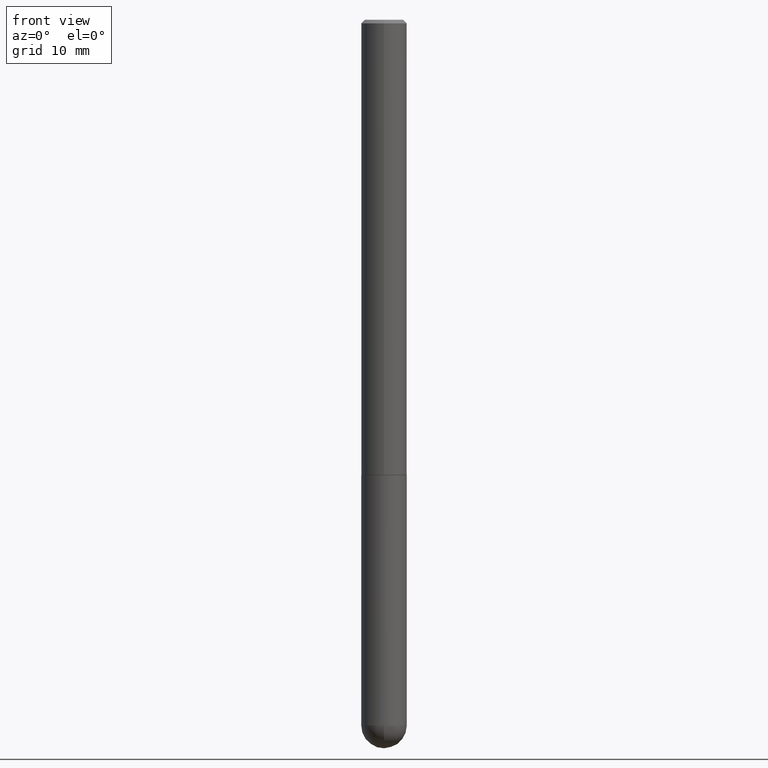
[diagram: clean part render]
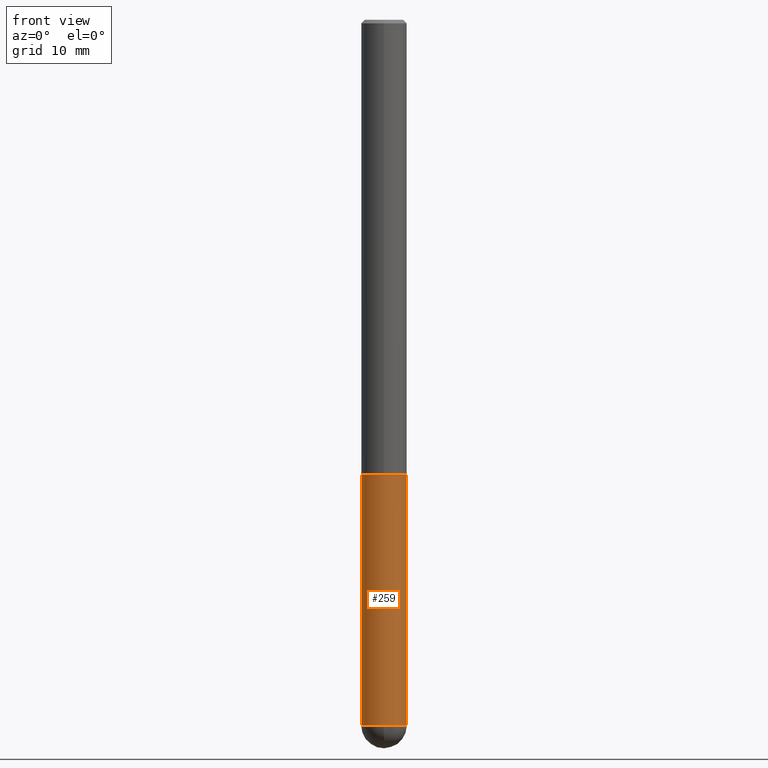
[diagram: same view with one face highlighted and labeled with its STEP entity id]
A machine part, front view. The second image highlights one B-rep face of the part: STEP entity #259.
In plain terms, the highlighted cylindrical surface (edge-blend (fillet) strip) has radius 3.175 mm, axis along (-0, 0, 1).
Its self-contained STEP definition (entity closure, byte-faithful):
#1 = EDGE_CURVE ( 'NONE', #400, #278, #349, .T. ) ;
#8 = CARTESIAN_POINT ( 'NONE',  ( 0.1250000000000000000, -8.728703347107833388E-16, 6.095220969744919741E-30 ) ) ;
#10 = CIRCLE ( 'NONE', #123, 0.1250000000000000000 ) ;
#12 = CARTESIAN_POINT ( 'NONE',  ( 0.1250000000000000000, -9.601573681818648281E-15, -2.500000000000000000 ) ) ;
#21 = CARTESIAN_POINT ( 'NONE',  ( -8.881784197000325412E-16, -0.1250000000000138500, -3.874999999999999556 ) ) ;
#23 = ORIENTED_EDGE ( 'NONE', *, *, #30, .T. ) ;
#30 = EDGE_CURVE ( 'NONE', #54, #400, #297, .T. ) ;
#31 = DIRECTION ( 'NONE',  ( 1.000000000000000000, -6.982962677686262766E-15, 0.000000000000000000 ) ) ;
#35 = DIRECTION ( 'NONE',  ( -2.445468806185136597E-29, 3.491481338843145583E-15, 1.000000000000000000 ) ) ;
#43 = CARTESIAN_POINT ( 'NONE',  ( 6.113672015462842613E-29, -8.728703347107864943E-15, -2.500000000000000000 ) ) ;
#44 = FACE_OUTER_BOUND ( 'NONE', #98, .T. ) ;
#45 = AXIS2_PLACEMENT_3D ( 'NONE', #338, #35, #127 ) ;
#54 = VERTEX_POINT ( 'NONE', #160 ) ;
#68 = AXIS2_PLACEMENT_3D ( 'NONE', #257, #229, #386 ) ;
#70 = LINE ( 'NONE', #372, #387 ) ;
#77 = DIRECTION ( 'NONE',  ( -2.445468806185136877E-29, 3.491481338843145188E-15, 1.000000000000000000 ) ) ;
#78 = AXIS2_PLACEMENT_3D ( 'NONE', #219, #122, #31 ) ;
#94 = ORIENTED_EDGE ( 'NONE', *, *, #250, .F. ) ;
#98 = EDGE_LOOP ( 'NONE', ( #177, #23, #175, #112, #94 ) ) ;
#105 = CYLINDRICAL_SURFACE ( 'NONE', #68, 0.1250000000000000000 ) ;
#109 = DIRECTION ( 'NONE',  ( 1.000000000000000000, -6.982962677686270655E-15, 0.000000000000000000 ) ) ;
#112 = ORIENTED_EDGE ( 'NONE', *, *, #315, .T. ) ;
#113 = EDGE_CURVE ( 'NONE', #54, #334, #70, .T. ) ;
#122 = DIRECTION ( 'NONE',  ( -2.445468806185136597E-29, 3.491481338843145583E-15, 1.000000000000000000 ) ) ;
#123 = AXIS2_PLACEMENT_3D ( 'NONE', #43, #169, #109 ) ;
#127 = DIRECTION ( 'NONE',  ( 1.000000000000000000, -6.982962677686262766E-15, 0.000000000000000000 ) ) ;
#131 = CARTESIAN_POINT ( 'NONE',  ( 0.1250000000000000000, -1.200196710227331272E-14, -3.875000000000000000 ) ) ;
#160 = CARTESIAN_POINT ( 'NONE',  ( -0.1250000000000000000, -1.024091834786240415E-14, -3.875000000000000000 ) ) ;
#162 = VECTOR ( 'NONE', #77, 39.37007874015748143 ) ;
#169 = DIRECTION ( 'NONE',  ( -2.445468806185136597E-29, 3.491481338843145583E-15, 1.000000000000000000 ) ) ;
#175 = ORIENTED_EDGE ( 'NONE', *, *, #1, .T. ) ;
#177 = ORIENTED_EDGE ( 'NONE', *, *, #113, .F. ) ;
#219 = CARTESIAN_POINT ( 'NONE',  ( 9.476191623967404313E-29, -1.352949018801718908E-14, -3.875000000000000000 ) ) ;
#229 = DIRECTION ( 'NONE',  ( -2.445468806185136597E-29, 3.491481338843145583E-15, 1.000000000000000000 ) ) ;
#250 = EDGE_CURVE ( 'NONE', #334, #273, #10, .T. ) ;
#257 = CARTESIAN_POINT ( 'NONE',  ( 0.000000000000000000, 0.000000000000000000, 0.000000000000000000 ) ) ;
#259 = ADVANCED_FACE ( 'NONE', ( #44 ), #105, .T. ) ;
#273 = VERTEX_POINT ( 'NONE', #12 ) ;
#278 = VERTEX_POINT ( 'NONE', #131 ) ;
#297 = CIRCLE ( 'NONE', #45, 0.1250000000000000000 ) ;
#315 = EDGE_CURVE ( 'NONE', #278, #273, #353, .T. ) ;
#334 = VERTEX_POINT ( 'NONE', #335 ) ;
#335 = CARTESIAN_POINT ( 'NONE',  ( -0.1250000000000000000, -1.024091834786240099E-14, -2.500000000000000000 ) ) ;
#338 = CARTESIAN_POINT ( 'NONE',  ( 9.476191623967404313E-29, -1.352949018801718908E-14, -3.875000000000000000 ) ) ;
#349 = CIRCLE ( 'NONE', #78, 0.1250000000000000000 ) ;
#353 = LINE ( 'NONE', #8, #162 ) ;
#372 = CARTESIAN_POINT ( 'NONE',  ( -0.1250000000000000000, 8.881784197001252323E-16, -6.148668862818632227E-30 ) ) ;
#386 = DIRECTION ( 'NONE',  ( 1.000000000000000000, -6.982962677686266711E-15, 4.876176775795935793E-29 ) ) ;
#387 = VECTOR ( 'NONE', #411, 39.37007874015748143 ) ;
#400 = VERTEX_POINT ( 'NONE', #21 ) ;
#411 = DIRECTION ( 'NONE',  ( -2.445468806185136877E-29, 3.491481338843145188E-15, 1.000000000000000000 ) ) ;